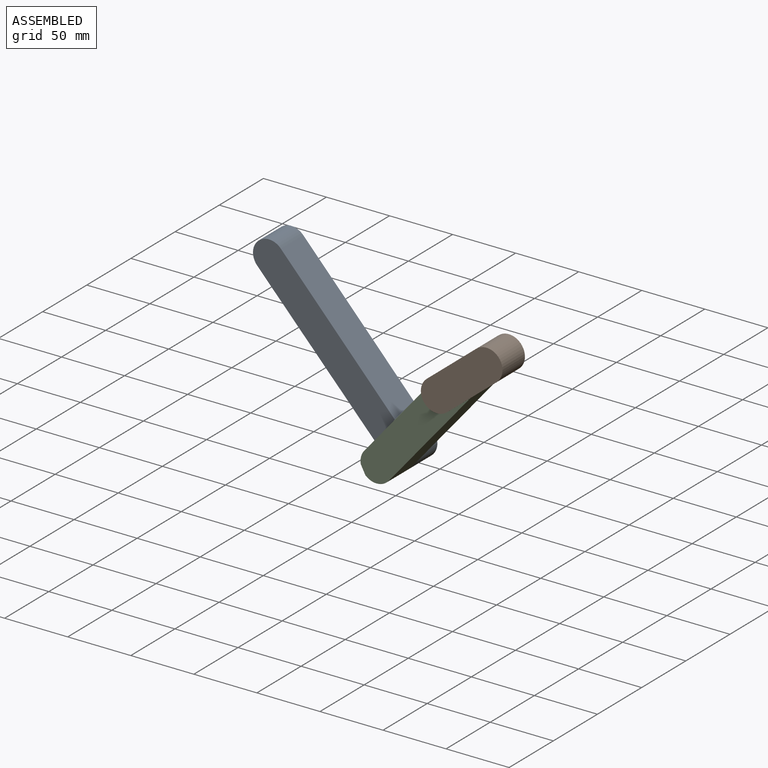
[diagram: assembled view]
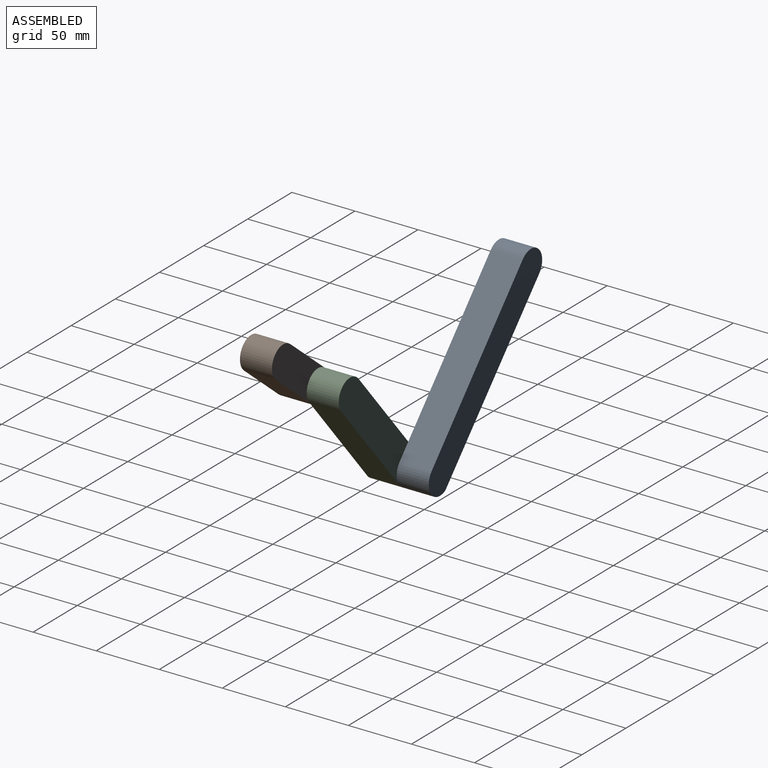
[diagram: assembled view, second angle]
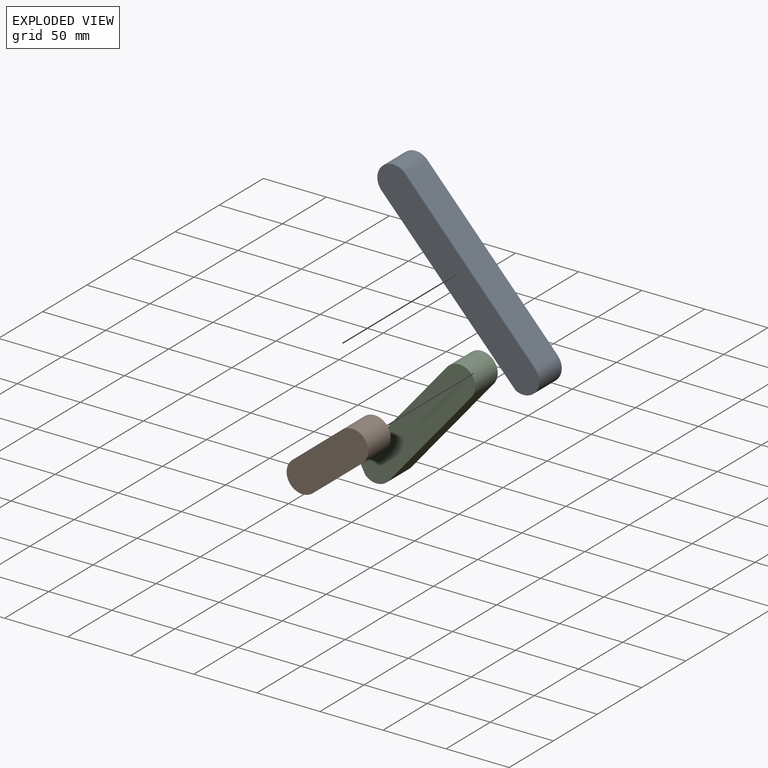
[diagram: exploded view]
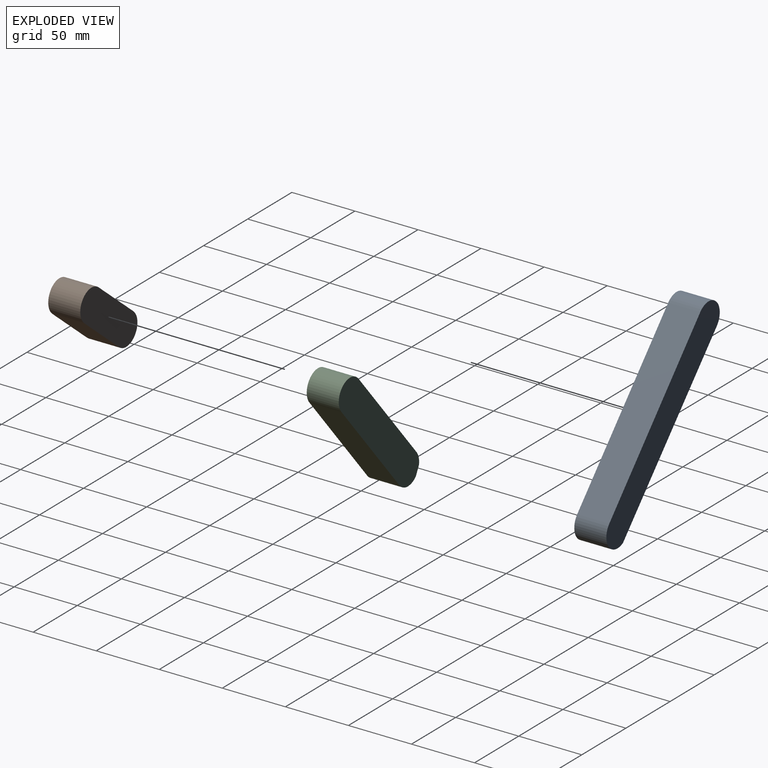
[diagram: exploded view, second angle]
ASSEMBLY  parts=3 mates=2
PART A: 6 faces, bbox 128.5x25.4x137.7 mm
  f0: cylinder r=12.7mm len=25.4mm, axis (0,-1,0), area 910.2mm2, adj f1,f3,f4,f5
  f1: plane 112.27x103.06mm, normal (0.74,0,0.68), area 3871mm2, adj f0,f2,f4,f5
  f2: cylinder r=12.7mm len=25.4mm, axis (0,-1,0), area 1014.7mm2, adj f1,f3,f4,f5
  f3: plane 114.74x106.2mm, normal (-0.73,0,-0.68), area 3971.1mm2, adj f0,f2,f4,f5
  f4: plane 137.67x128.46mm, normal (0,1,0), area 4328.1mm2, adj f0,f1,f2,f3
  f5: plane 137.67x128.46mm, normal (0,-1,0), area 4328.1mm2, adj f0,f1,f2,f3
PART B: 6 faces, bbox 71.6x25.4x46.6 mm
  f0: plane 46.18x25.4mm, normal (0.42,0,0.91), area 1290.3mm2, adj f1,f3,f4,f5
  f1: cylinder r=12.7mm len=25.4mm, axis (0,-1,0), area 1013.4mm2, adj f0,f2,f4,f5
  f2: plane 46.18x25.4mm, normal (-0.42,0,-0.91), area 1290.3mm2, adj f1,f3,f4,f5
  f3: cylinder r=12.7mm len=25.4mm, axis (0,-1,0), area 1013.4mm2, adj f0,f2,f4,f5
  f4: plane 71.58x46.58mm, normal (0,1,0), area 1797mm2, adj f0,f1,f2,f3
  f5: plane 71.58x46.58mm, normal (0,-1,0), area 1797mm2, adj f0,f1,f2,f3
PART C: 8 faces, bbox 67.8x25.4x117.8 mm
  f0: plane 92.35x42.35mm, normal (-0.91,0,0.42), area 2580.6mm2, adj f1,f5,f6,f7
  f1: cylinder r=12.7mm len=25.4mm, axis (0,1,0), area 277.7mm2, adj f0,f2,f6,f7
  f2: plane 25.4x5.79mm, normal (-0.73,0,-0.68), area 200.4mm2, adj f1,f3,f6,f7
  f3: cylinder r=12.7mm len=25.4mm, axis (0,1,0), area 531.9mm2, adj f2,f4,f6,f7
  f4: plane 92.35x42.35mm, normal (0.91,0,-0.42), area 2580.6mm2, adj f3,f5,f6,f7
  f5: cylinder r=12.7mm len=25.4mm, axis (0,1,0), area 1013.4mm2, adj f0,f4,f6,f7
  f6: plane 117.75x67.75mm, normal (0,-1,0), area 3084mm2, adj f0,f1,f2,f3,f4,f5
  f7: plane 117.75x67.75mm, normal (0,1,0), area 3084mm2, adj f0,f1,f2,f3,f4,f5
PLACE A t=(-84.32,-23.87,37.22)mm fixed
PLACE B rot(axis=(0,-1,0),63.9deg) t=(-63.88,-74.67,69.32)mm
PLACE C rot(axis=(0,1,0),15.6deg) t=(-68.18,-23.87,12.71)mm
MATE revolute C.f5 <-> B.f1  axis (0,-1,0) through (-100.09,-49.27,43.6)mm
MATE revolute C.f1 <-> A.f0  axis (0,1,0) through (-165.72,-23.87,-33.96)mm
